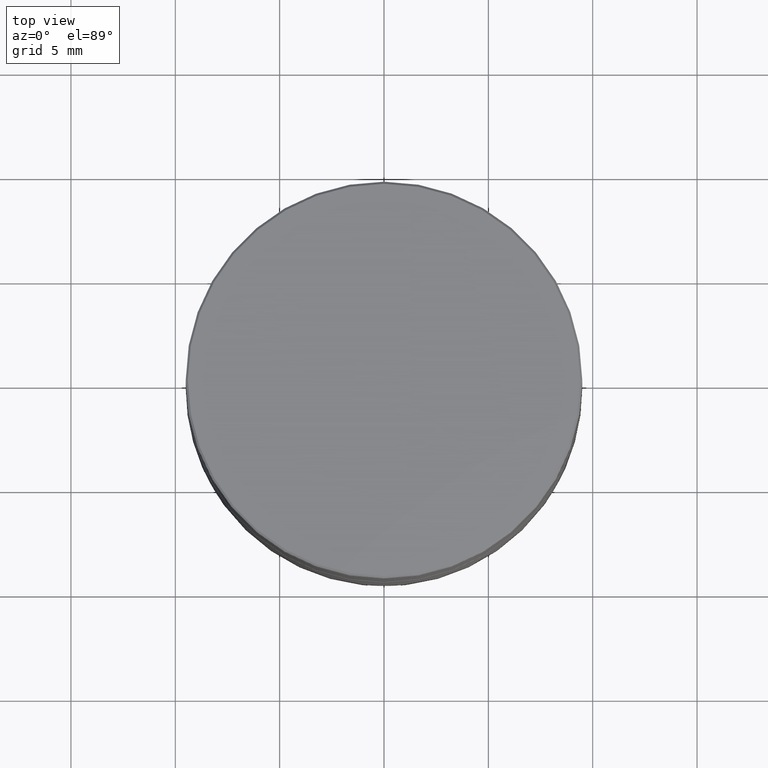
[diagram: clean part render]
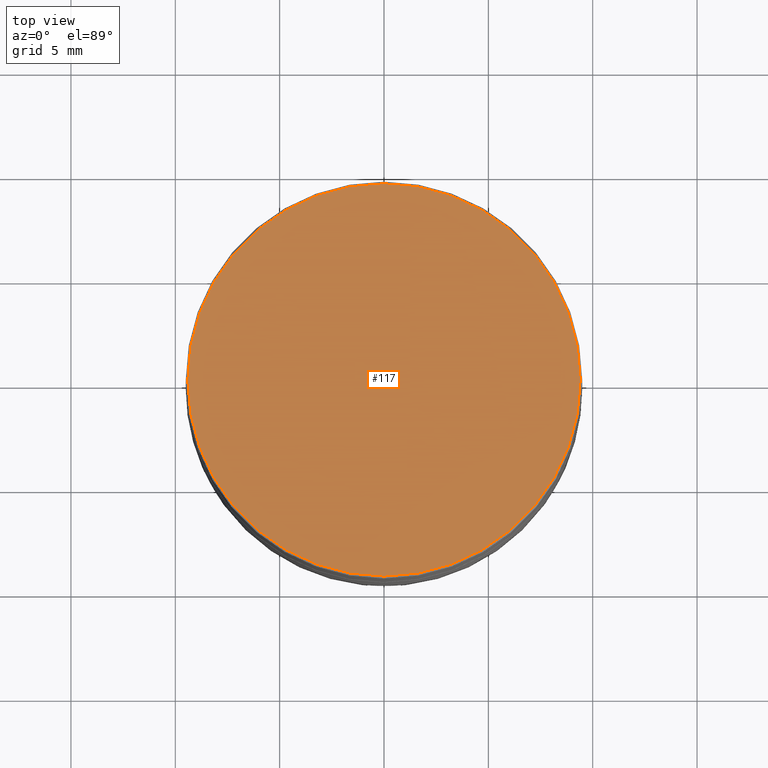
[diagram: same view with one face highlighted and labeled with its STEP entity id]
A machine part, top view. The second image highlights one B-rep face of the part: STEP entity #117.
In plain terms, the highlighted planar face has unit normal (0, -0, 1).
Its self-contained STEP definition (entity closure, byte-faithful):
#117 = ADVANCED_FACE ( 'NONE', ( #224 ), #1358, .T. ) ;
#187 = EDGE_CURVE ( 'NONE', #515, #690, #511, .T. ) ;
#224 = FACE_OUTER_BOUND ( 'NONE', #1614, .T. ) ;
#488 = AXIS2_PLACEMENT_3D ( 'NONE', #860, #871, #625 ) ;
#511 = CIRCLE ( 'NONE', #748, 9.400000000000002132 ) ;
#515 = VERTEX_POINT ( 'NONE', #901 ) ;
#604 = CARTESIAN_POINT ( 'NONE',  ( 0.000000000000000000, 0.000000000000000000, 0.000000000000000000 ) ) ;
#618 = DIRECTION ( 'NONE',  ( -0.000000000000000000, -0.000000000000000000, 1.000000000000000000 ) ) ;
#625 = DIRECTION ( 'NONE',  ( 1.000000000000000000, 0.000000000000000000, 0.000000000000000000 ) ) ;
#690 = VERTEX_POINT ( 'NONE', #1153 ) ;
#748 = AXIS2_PLACEMENT_3D ( 'NONE', #604, #618, #1494 ) ;
#860 = CARTESIAN_POINT ( 'NONE',  ( 0.000000000000000000, 0.000000000000000000, 0.000000000000000000 ) ) ;
#871 = DIRECTION ( 'NONE',  ( 0.000000000000000000, -0.000000000000000000, 1.000000000000000000 ) ) ;
#879 = CIRCLE ( 'NONE', #1433, 9.400000000000002132 ) ;
#901 = CARTESIAN_POINT ( 'NONE',  ( -9.400000000000002132, 0.000000000000000000, 0.000000000000000000 ) ) ;
#925 = ORIENTED_EDGE ( 'NONE', *, *, #187, .T. ) ;
#996 = DIRECTION ( 'NONE',  ( -0.000000000000000000, -0.000000000000000000, 1.000000000000000000 ) ) ;
#1003 = DIRECTION ( 'NONE',  ( 1.000000000000000000, 0.000000000000000000, 0.000000000000000000 ) ) ;
#1063 = ORIENTED_EDGE ( 'NONE', *, *, #1451, .T. ) ;
#1153 = CARTESIAN_POINT ( 'NONE',  ( 9.400000000000002132, 1.157291225194248807E-15, 0.000000000000000000 ) ) ;
#1252 = CARTESIAN_POINT ( 'NONE',  ( 0.000000000000000000, 0.000000000000000000, 0.000000000000000000 ) ) ;
#1358 = PLANE ( 'NONE',  #488 ) ;
#1433 = AXIS2_PLACEMENT_3D ( 'NONE', #1252, #996, #1003 ) ;
#1451 = EDGE_CURVE ( 'NONE', #690, #515, #879, .T. ) ;
#1494 = DIRECTION ( 'NONE',  ( 1.000000000000000000, 0.000000000000000000, 0.000000000000000000 ) ) ;
#1614 = EDGE_LOOP ( 'NONE', ( #925, #1063 ) ) ;